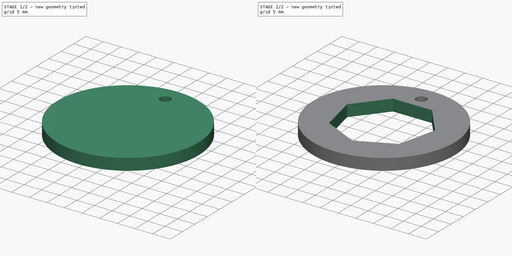
[diagram: build sequence overview — one tinted view per stage of 2, left to right]
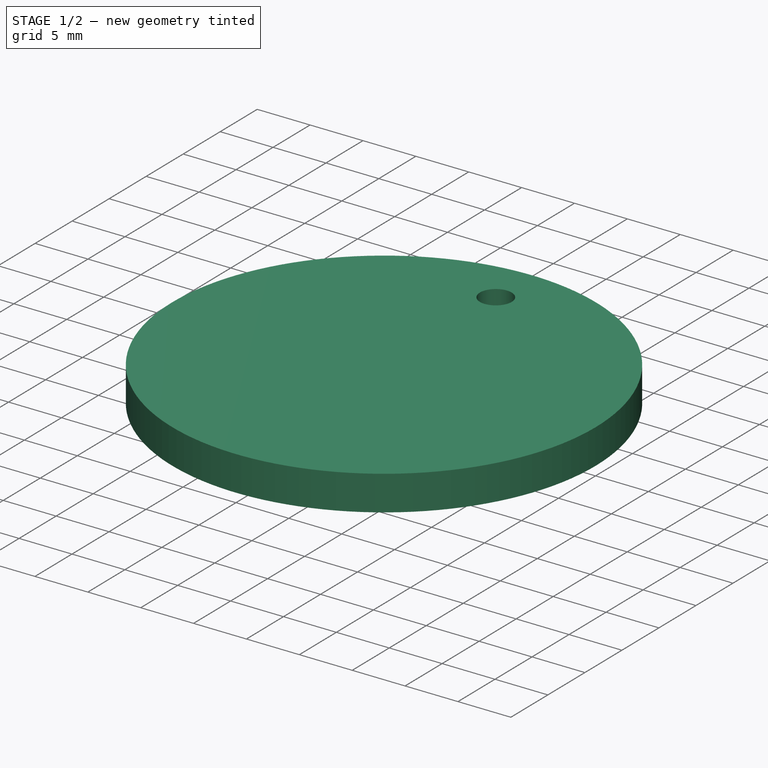
[diagram: stage 1 of 2 — iso view after this stage's code; geometry added in this stage tinted green]
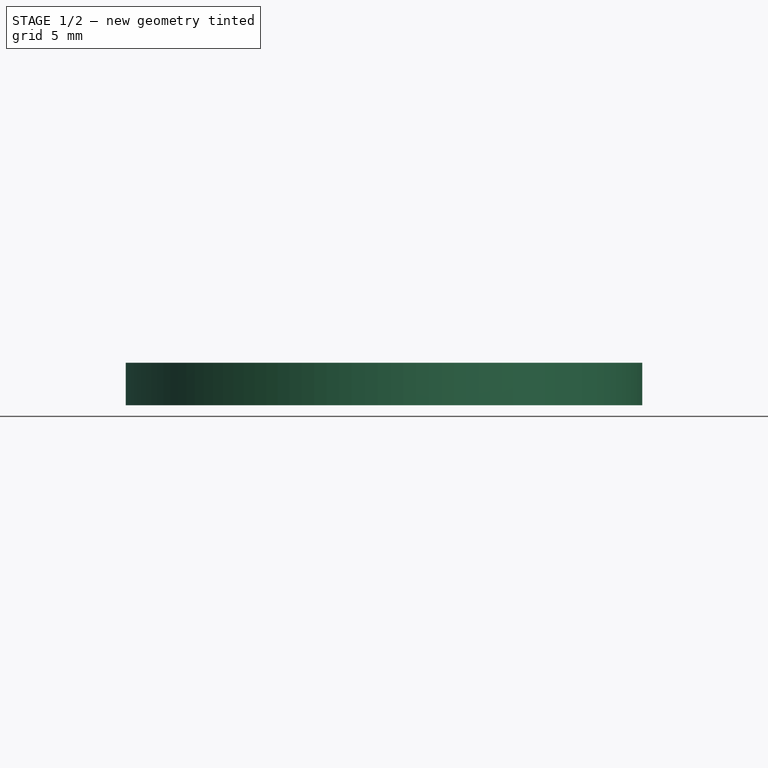
[diagram: stage 1 of 2 — front view after this stage's code; geometry added in this stage tinted green]
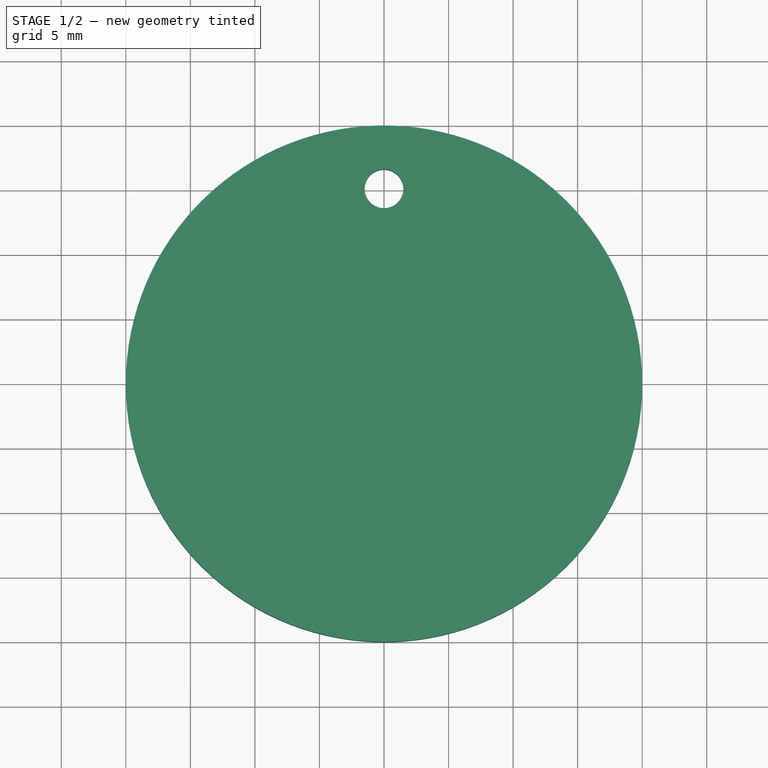
[diagram: stage 1 of 2 — top view after this stage's code; geometry added in this stage tinted green]
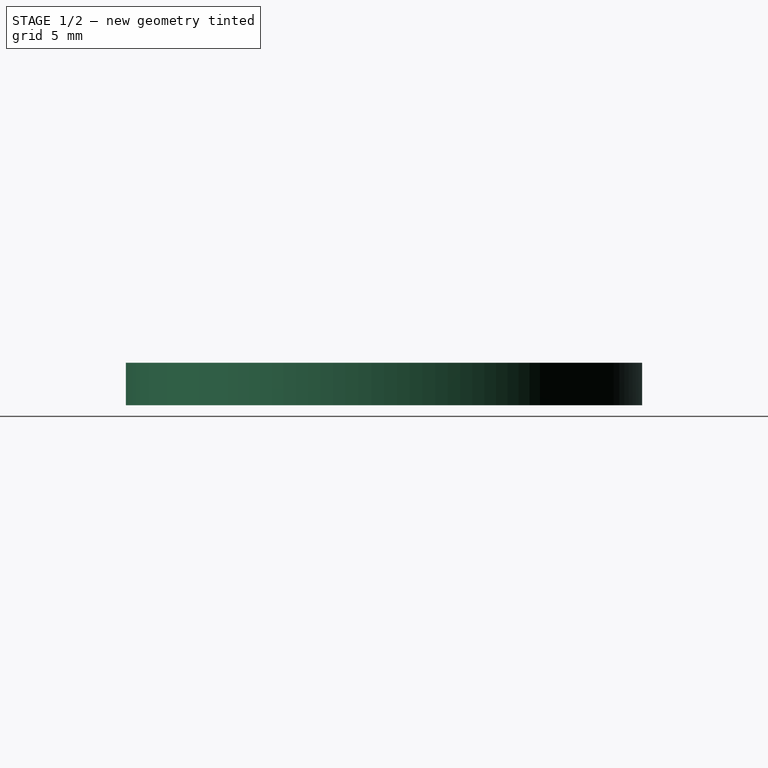
[diagram: stage 1 of 2 — right view after this stage's code; geometry added in this stage tinted green]
FCSTD DOCUMENT  (FreeCAD 0.15R4630 (Git))
Label: T5-ej1
License: CreativeCommons Attribution-ShareAlike
LicenseURL: http://creativecommons.org/licenses/by-sa/4.0/
objects: Sketcher::SketchObject×2, PartDesign::Pocket×2, Part::Feature×2, App::DocumentObjectGroup×2, Part::Cylinder×1
note: 9 computed .brp shape members not serialized (recipe doc carries the construction recipe); baked Part::Feature solids carry a one-line shape summary decoded from their .brp

FEATURE [Part::Cylinder] Cylinder  label="casino-chip-main body"
  Angle = 360
  Height = 3.3
  Radius = 20
FEATURE [Sketcher::SketchObject] Sketch  label="hole-sketch"
  Placement = pos=(0,0,3.3) rot=(0,0,1;0rad)
  Support = -> Cylinder [Face2]
  sketch-geometry (1):
    g0: Circle CenterX=0 CenterY=15.1 CenterZ=0 NormalX=0 NormalY=0 NormalZ=1 Radius=1.5
  constraints (3):
    c: Radius(g0) = 1.5
    c: PointOnObject(g0,g-2)
    c: DistanceY(g-1,g0) = 15.1
FEATURE [PartDesign::Pocket] Pocket  label="casino-chip-key-chain"
  Length = 5
  Sketch = -> Sketch
  Type = 1
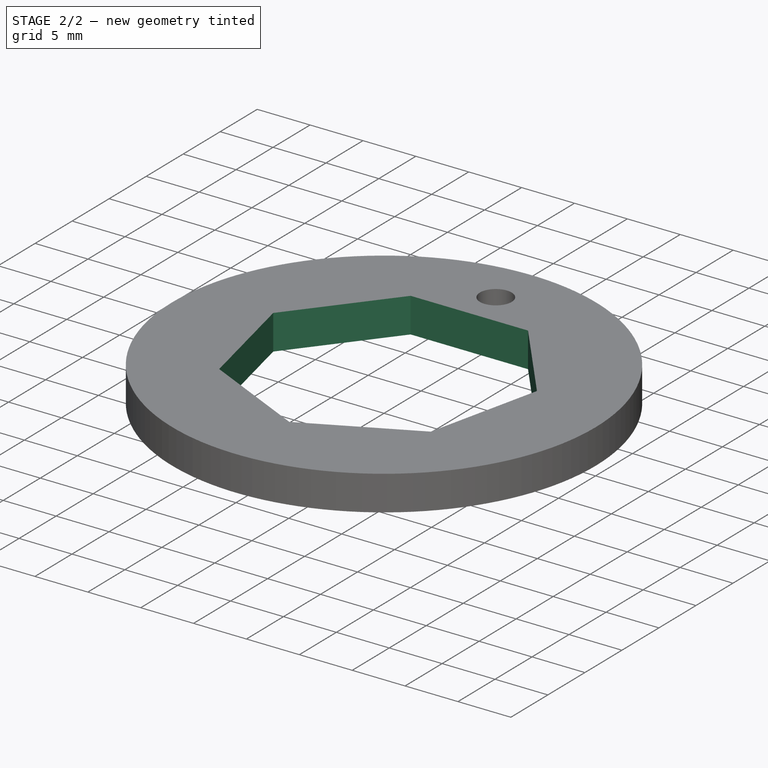
[diagram: stage 2 of 2 — iso view after this stage's code; geometry added in this stage tinted green]
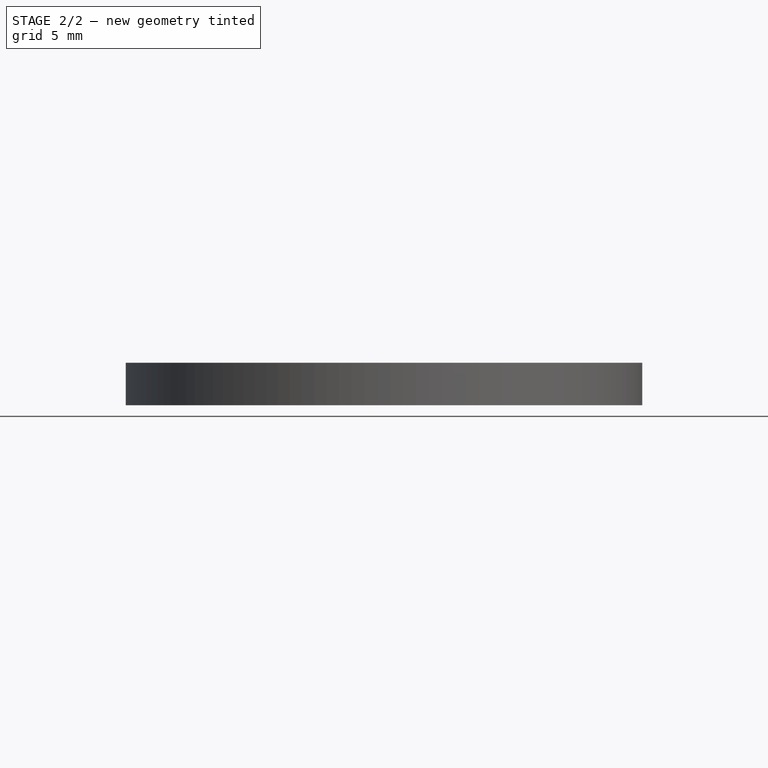
[diagram: stage 2 of 2 — front view after this stage's code; geometry added in this stage tinted green]
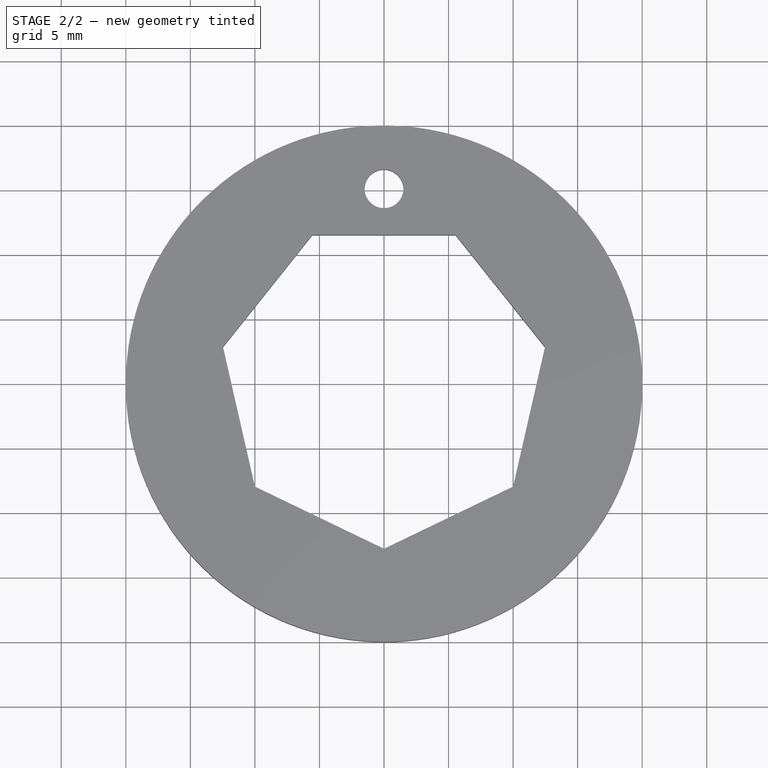
[diagram: stage 2 of 2 — top view after this stage's code; geometry added in this stage tinted green]
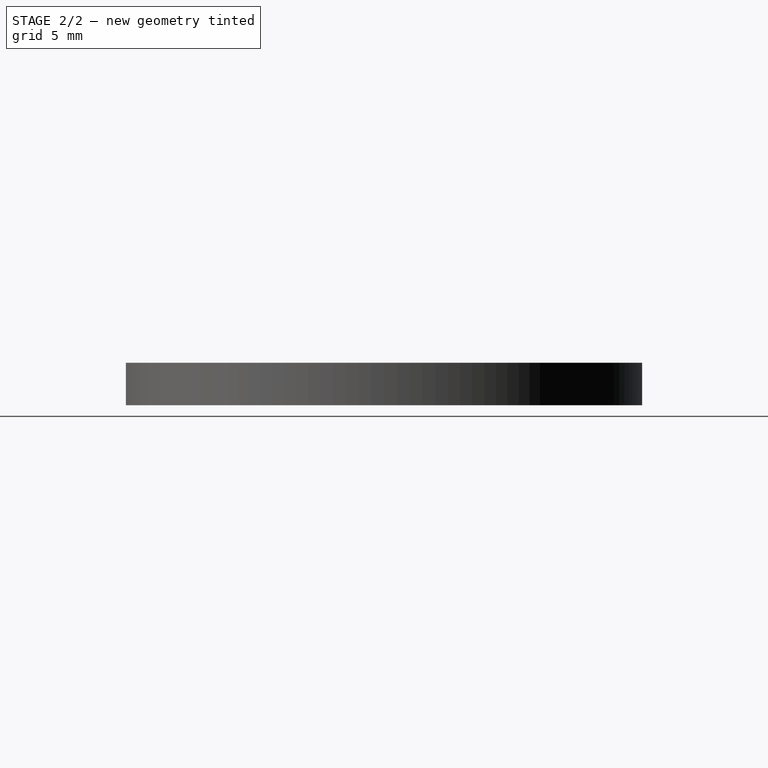
[diagram: stage 2 of 2 — right view after this stage's code; geometry added in this stage tinted green]
FEATURE [Part::Feature] Sweep  label="key-ring-model-1"
  Placement = pos=(-1.2,24.7546,1.6391) rot=(0.333333,0.881918,0.333333;1.69612rad)
  shape: bbox 3.31 x 27.02 x 26.33 mm, 4 faces (baked)
FEATURE [Part::Feature] Cut  label="key-model-1"
  Placement = pos=(-5.46976,31.0266,0) rot=(0,0,1;0.517888rad)
  shape: bbox 49.82 x 36.6 x 2.3 mm, 44 faces (baked)
FEATURE [App::DocumentObjectGroup] Group  label="Assembly"
  Group = -> [Sweep,Cut]
FEATURE [Sketcher::SketchObject] Sketch001
  Placement = pos=(0,0,3.3) rot=(0,0,1;0rad)
  Support = -> Pocket [Face2]
  sketch-geometry (8):
    g0: LineSegment StartX=10 StartY=-7.97473 StartZ=0 EndX=12.4698 EndY=2.84615 EndZ=0
    g1: LineSegment StartX=12.4698 StartY=2.84615 StartZ=0 EndX=5.54958 EndY=11.5238 EndZ=0
    g2: LineSegment StartX=5.54958 StartY=11.5238 StartZ=0 EndX=-5.54958 EndY=11.5238 EndZ=0
    g3: LineSegment StartX=-5.54958 StartY=11.5238 StartZ=0 EndX=-12.4698 EndY=2.84615 EndZ=0
    g4: LineSegment StartX=-12.4698 StartY=2.84615 StartZ=0 EndX=-10 EndY=-7.97473 EndZ=0
    g5: LineSegment StartX=-10 StartY=-7.97473 StartZ=0 EndX=0 EndY=-12.7905 EndZ=0
    g6: LineSegment StartX=0 StartY=-12.7905 StartZ=0 EndX=10 EndY=-7.97473 EndZ=0
    g7: Circle [constr] CenterX=0 CenterY=0 CenterZ=0 NormalX=0 NormalY=0 NormalZ=1 Radius=12.7905
  constraints (18):
    c: Coincident(g0,g1)
    c: Coincident(g1,g2)
    c: Coincident(g2,g3)
    c: Coincident(g3,g4)
    c: Coincident(g4,g5)
    c: Coincident(g5,g6)
    c: Coincident(g6,g0)
    c: Equal(g0, g1-g6) x6
    c: PointOnObject(g0,g7)
    c: PointOnObject(g1,g7)
    c: PointOnObject(g2,g7)
    c: PointOnObject(g3,g7)
    c: PointOnObject(g4,g7)
    c: PointOnObject(g5,g7)
    c: PointOnObject(g6,g7)
    c: Coincident(g7,g-1)
    c: DistanceX(g6) = 10
    c: Horizontal(g2)
FEATURE [PartDesign::Pocket] Pocket001
  Length = 5
  Sketch = -> Sketch001
  Type = 1
FEATURE [App::DocumentObjectGroup] Group001  label="Casino-chip-src"
  Group = -> [Cylinder,Pocket,Pocket001]
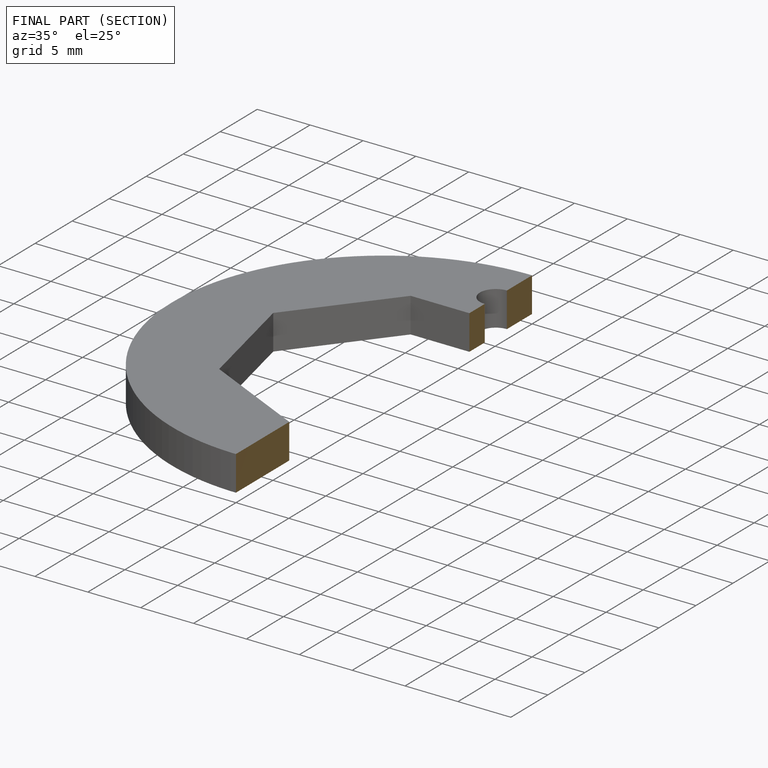
[diagram: finished part — half-section view (interior)]
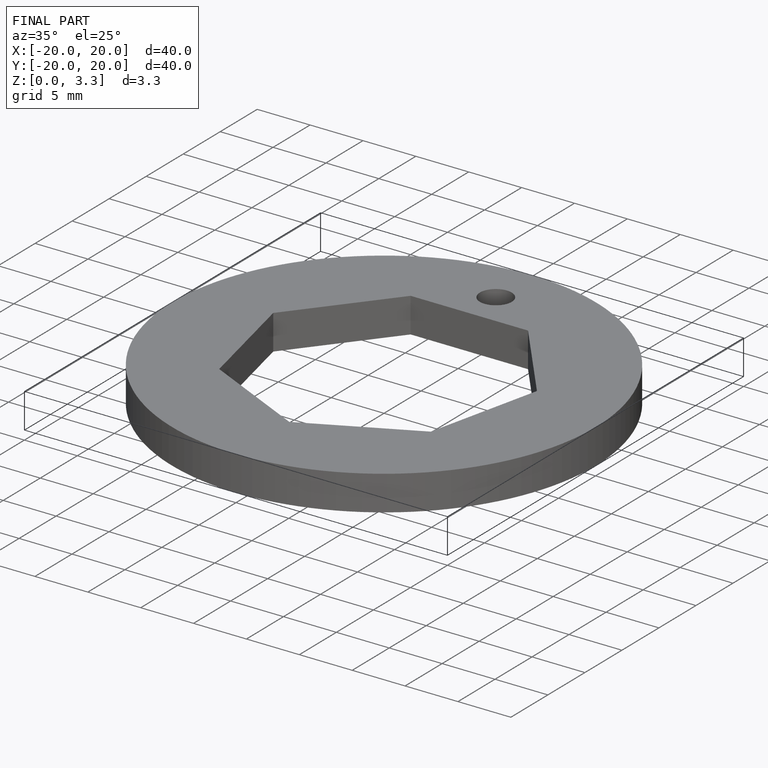
[diagram: finished part — iso view with bounding-box wireframe]
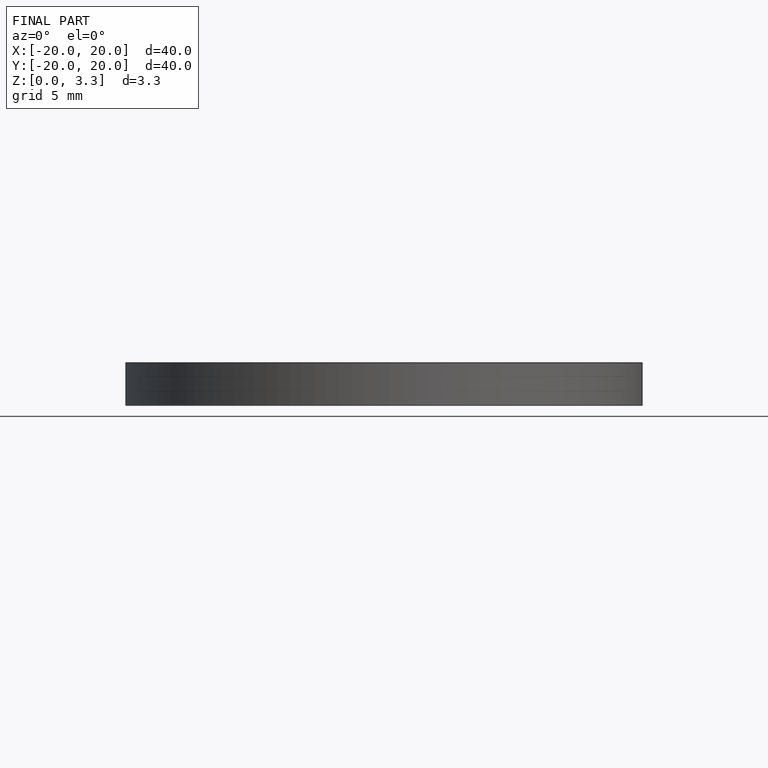
[diagram: finished part — front view with bounding-box wireframe]
